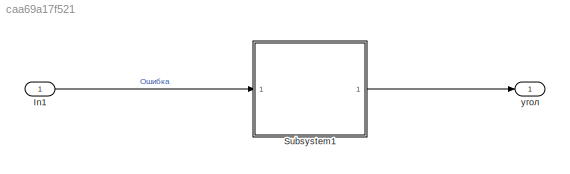
MODEL slx_caa69a17f521
KIND model
CONFIG AbsTol = auto
CONFIG EnableMultiTasking = off
CONFIG FixedStep = auto
CONFIG MaxStep = auto
CONFIG MinStep = auto
CONFIG RelTol = 1e-3
CONFIG SampleTimeConstraint = Unconstrained
CONFIG SolverName = VariableStepAuto
CONFIG StartTime = 0.0
CONFIG StopTime = 0.8
BLOCK [Inport] In1
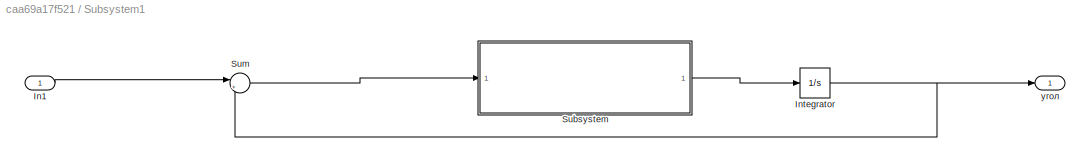
BLOCK [SubSystem] Subsystem1
BLOCK [Inport] Subsystem1/In1
BLOCK [Integrator] Subsystem1/Integrator
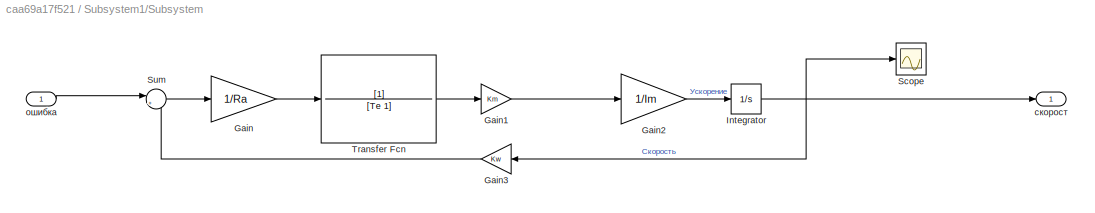
BLOCK [SubSystem] Subsystem1/Subsystem
BLOCK [Gain] Subsystem1/Subsystem/Gain
  Gain = 1/Ra
BLOCK [Gain] Subsystem1/Subsystem/Gain1
  Gain = Km
BLOCK [Gain] Subsystem1/Subsystem/Gain2
  Gain = 1/Im
BLOCK [Gain] Subsystem1/Subsystem/Gain3
  Gain = Kw
  NameLocation = top
BLOCK [Integrator] Subsystem1/Subsystem/Integrator
BLOCK [Scope] Subsystem1/Subsystem/Scope
  Floating = off
  NumInputPorts = 1
  ScopeSpecificationString = Simulink.scopes.TimeScopeBlockCfg('CurrentConfiguration', extmgr.ConfigurationSet(extmgr.Configuration('Core','General UI',true),extmgr.Configuration('Core','Source UI',true),extmgr.Configuration('Sources','WiredSimulink',true),extmgr.Configuration('Visuals','Time Domain',true),extmgr.Configuration('Tools','Plot Navigation',true),extmgr.Configuration('Tools','Measurements',true)),'Version','2024a'...<+1ch>
BLOCK [Sum] Subsystem1/Subsystem/Sum
  Inputs = |+-
BLOCK [TransferFcn] Subsystem1/Subsystem/Transfer Fcn
  Denominator = [Te 1]
BLOCK [Inport] Subsystem1/Subsystem/ошибка
BLOCK [Outport] Subsystem1/Subsystem/скорост
BLOCK [Sum] Subsystem1/Sum
  Inputs = |+-
BLOCK [Outport] Subsystem1/угол
BLOCK [Outport] угол
LINE In1:1 -> Subsystem1:1
LINE Subsystem1/In1:1 -> Subsystem1/Sum:1
NET Subsystem1/Integrator:1 -> Subsystem1/Sum:2, Subsystem1/угол:1
LINE Subsystem1/Subsystem/Gain1:1 -> Subsystem1/Subsystem/Gain2:1
LINE Subsystem1/Subsystem/Gain2:1 -> Subsystem1/Subsystem/Integrator:1
LINE Subsystem1/Subsystem/Gain3:1 -> Subsystem1/Subsystem/Sum:2
LINE Subsystem1/Subsystem/Gain:1 -> Subsystem1/Subsystem/Transfer Fcn:1
NET Subsystem1/Subsystem/Integrator:1 -> Subsystem1/Subsystem/Gain3:1, Subsystem1/Subsystem/Scope:1, Subsystem1/Subsystem/скорост:1
LINE Subsystem1/Subsystem/Sum:1 -> Subsystem1/Subsystem/Gain:1
LINE Subsystem1/Subsystem/Transfer Fcn:1 -> Subsystem1/Subsystem/Gain1:1
LINE Subsystem1/Subsystem/ошибка:1 -> Subsystem1/Subsystem/Sum:1
LINE Subsystem1/Subsystem:1 -> Subsystem1/Integrator:1
LINE Subsystem1/Sum:1 -> Subsystem1/Subsystem:1
LINE Subsystem1:1 -> угол:1
note: NET lines group one-source signal fan-out (src -> all destinations, sorted); 1:1 wires keep LINE
